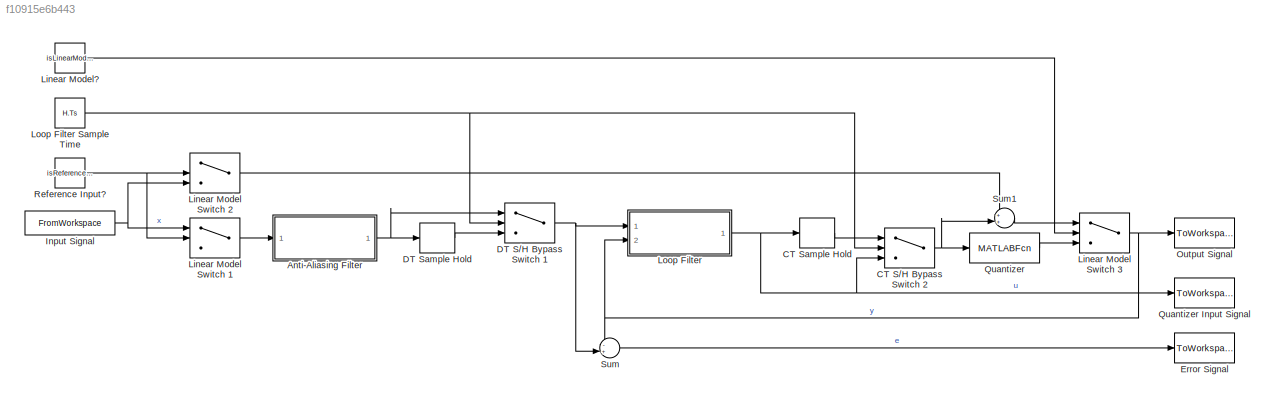
MODEL slx_f10915e6b443
KIND model
CONFIG AbsTol = auto
CONFIG EnableMultiTasking = off
CONFIG FixedStep = auto
CONFIG MaxStep = auto
CONFIG MinStep = auto
CONFIG RelTol = 1e-3
CONFIG SampleTimeConstraint = Unconstrained
CONFIG Solver = VariableStepAuto
CONFIG SolverName = VariableStepAuto
CONFIG StartTime = 0.0
CONFIG StopTime = 0.1
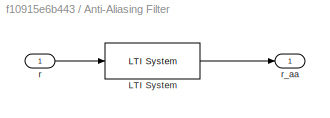
BLOCK [SubSystem] Anti-Aliasing Filter
  Ports = [1, 1]
  RequestExecContextInheritance = off
  Variant = off
BLOCK [Reference] Anti-Aliasing Filter/LTI System  REF=cstblocks/LTI System
  Ports = [1, 1]
  SourceBlock = cstblocks/LTI System
  SourceProductBaseCode = CT
  SourceProductName = Control System Toolbox
  SourceType = LTI Block
BLOCK [Inport] Anti-Aliasing Filter/r
  IconDisplay = Port number
BLOCK [Outport] Anti-Aliasing Filter/r_aa
  IconDisplay = Port number
BLOCK [Switch] CT S//H Bypass Switch 2
  Criteria = u2 ~= 0
  InputSameDT = off
  SaturateOnIntegerOverflow = off
BLOCK [ZeroOrderHold] CT Sample Hold
  SampleTime = Ts
BLOCK [Switch] DT S//H Bypass Switch 1
  Criteria = u2 > Threshold
  InputSameDT = off
  SaturateOnIntegerOverflow = off
BLOCK [ZeroOrderHold] DT Sample Hold
  SampleTime = Ts
BLOCK [ToWorkspace] Error Signal
  FixptAsFi = on
  MaxDataPoints = inf
  Ports = [1]
  SampleTime = -1
  Save2DSignal = 3-D array (concatenate along third dimension)
  SaveFormat = Timeseries
  VariableName = e
BLOCK [FromWorkspace] Input Signal
  SampleTime = 0
  VariableName = x
  ZeroCross = on
BLOCK [Switch] Linear Model Switch 1
  Criteria = u2 > Threshold
  InputSameDT = off
  SaturateOnIntegerOverflow = off
BLOCK [Switch] Linear Model Switch 2
  Criteria = u2 > Threshold
  InputSameDT = off
  SaturateOnIntegerOverflow = off
BLOCK [Switch] Linear Model Switch 3
  Criteria = u2 > Threshold
  InputSameDT = off
  SaturateOnIntegerOverflow = off
BLOCK [Constant] Linear Model?
  Value = isLinearModel
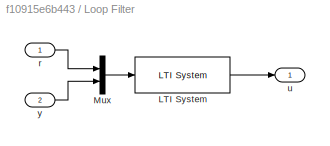
BLOCK [SubSystem] Loop Filter
  Ports = [2, 1]
  RequestExecContextInheritance = off
  Variant = off
BLOCK [Constant] Loop Filter Sample Time
  Value = H.Ts
BLOCK [Reference] Loop Filter/LTI System  REF=cstblocks/LTI System
  Ports = [1, 1]
  SourceBlock = cstblocks/LTI System
  SourceProductBaseCode = CT
  SourceProductName = Control System Toolbox
  SourceType = LTI Block
BLOCK [Mux] Loop Filter/Mux
  DisplayOption = bar
  Inputs = 2
  Ports = [2, 1]
BLOCK [Inport] Loop Filter/r
  IconDisplay = Port number
BLOCK [Outport] Loop Filter/u
  IconDisplay = Port number
BLOCK [Inport] Loop Filter/y
  IconDisplay = Port number
  Port = 2
BLOCK [ToWorkspace] Output Signal
  FixptAsFi = on
  MaxDataPoints = inf
  Ports = [1]
  SampleTime = -1
  Save2DSignal = 3-D array (concatenate along third dimension)
  SaveFormat = Timeseries
  VariableName = y
BLOCK [MATLABFcn] Quantizer
  MATLABFcn = sdm_q_sim.quantize(u)
  Ports = [1, 1]
BLOCK [ToWorkspace] Quantizer Input Signal
  FixptAsFi = on
  MaxDataPoints = inf
  Ports = [1]
  SampleTime = -1
  Save2DSignal = 3-D array (concatenate along third dimension)
  SaveFormat = Timeseries
  VariableName = u
BLOCK [Constant] Reference Input?
  Value = isReferenceInput
BLOCK [Sum] Sum
  IconShape = round
  InputSameDT = off
  Inputs = -+|
  OutDataTypeStr = Inherit: Inherit via internal rule
  Ports = [2, 1]
  SaturateOnIntegerOverflow = off
BLOCK [Sum] Sum1
  IconShape = round
  InputSameDT = off
  Inputs = ++|
  OutDataTypeStr = Inherit: Inherit via internal rule
  Ports = [2, 1]
  SaturateOnIntegerOverflow = off
LINE Anti-Aliasing Filter/LTI System:1 -> Anti-Aliasing Filter/r_aa:1
LINE Anti-Aliasing Filter/r:1 -> Anti-Aliasing Filter/LTI System:1
NET Anti-Aliasing Filter:1 -> DT S//H Bypass Switch 1:1, DT Sample Hold:1
NET CT S//H Bypass Switch 2:1 -> Quantizer:1, Sum1:2
LINE CT Sample Hold:1 -> CT S//H Bypass Switch 2:1
NET DT S//H Bypass Switch 1:1 -> Loop Filter:1, Sum:2
LINE DT Sample Hold:1 -> DT S//H Bypass Switch 1:3
NET Input Signal:1 -> Linear Model Switch 1:1, Linear Model Switch 2:3
LINE Linear Model Switch 1:1 -> Anti-Aliasing Filter:1
LINE Linear Model Switch 2:1 -> Sum1:1
NET Linear Model Switch 3:1 -> Loop Filter:2, Output Signal:1, Sum:1
LINE Linear Model?:1 -> Linear Model Switch 3:2
NET Loop Filter Sample Time:1 -> CT S//H Bypass Switch 2:2, DT S//H Bypass Switch 1:2
LINE Loop Filter/LTI System:1 -> Loop Filter/u:1
LINE Loop Filter/Mux:1 -> Loop Filter/LTI System:1
LINE Loop Filter/r:1 -> Loop Filter/Mux:1
LINE Loop Filter/y:1 -> Loop Filter/Mux:2
NET Loop Filter:1 -> CT S//H Bypass Switch 2:3, CT Sample Hold:1, Quantizer Input Signal:1
LINE Quantizer:1 -> Linear Model Switch 3:3
NET Reference Input?:1 -> Linear Model Switch 1:2, Linear Model Switch 2:2
LINE Sum1:1 -> Linear Model Switch 3:1
LINE Sum:1 -> Error Signal:1
note: NET lines group one-source signal fan-out (src -> all destinations, sorted); 1:1 wires keep LINE
